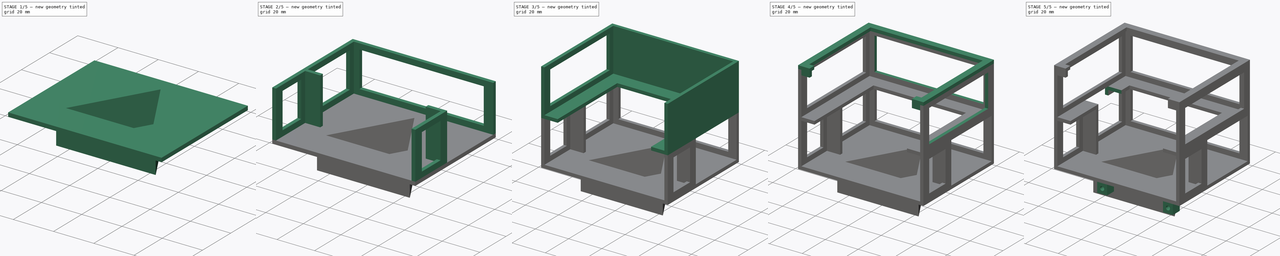
[diagram: build sequence overview — one tinted view per stage of 5, left to right]
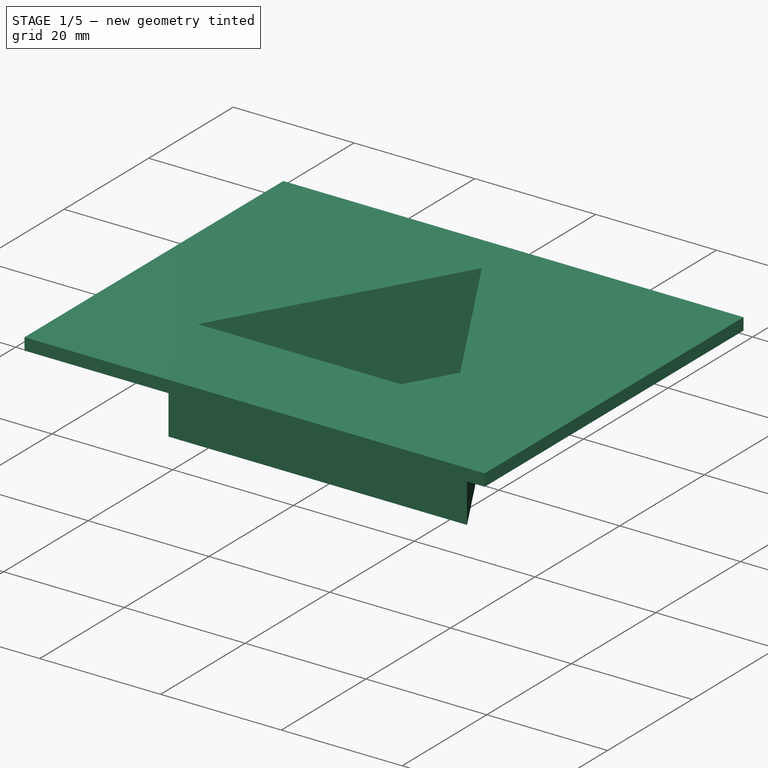
[diagram: stage 1 of 5 — iso view after this stage's code; geometry added in this stage tinted green]
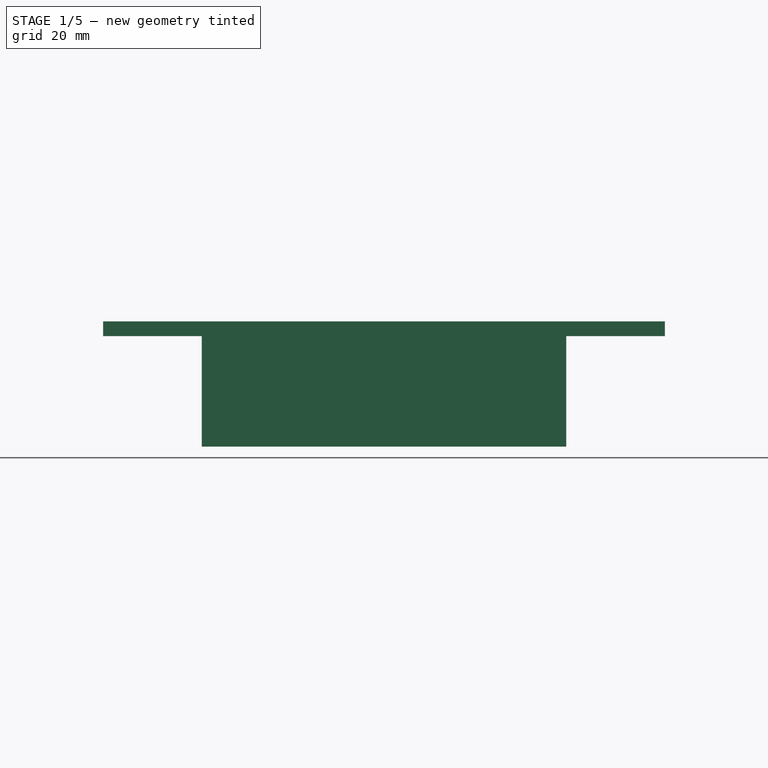
[diagram: stage 1 of 5 — front view after this stage's code; geometry added in this stage tinted green]
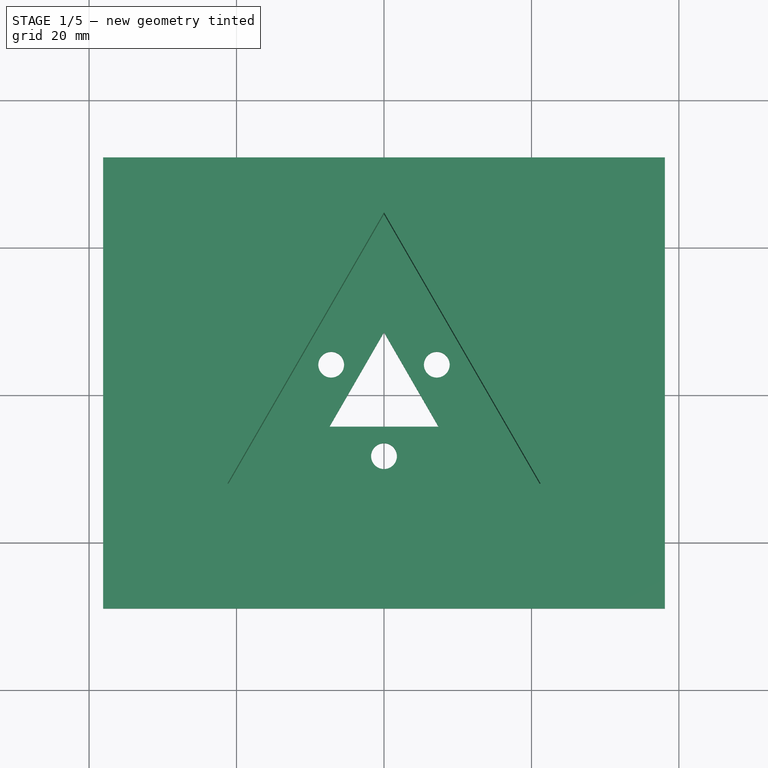
[diagram: stage 1 of 5 — top view after this stage's code; geometry added in this stage tinted green]
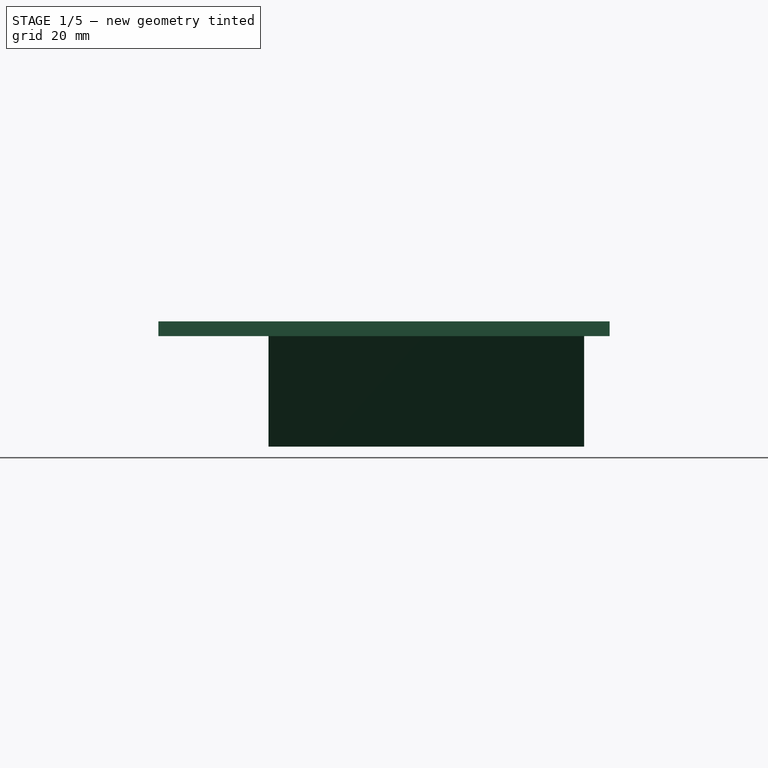
[diagram: stage 1 of 5 — right view after this stage's code; geometry added in this stage tinted green]
FCSTD DOCUMENT  (FreeCAD 0.19R)
Label: core2_3
License: All rights reserved
LicenseURL: http://en.wikipedia.org/wiki/All_rights_reserved
objects: Sketcher::SketchObject×17, PartDesign::Pad×9, PartDesign::Pocket×8, PartDesign::Body×1
note: 52 computed .brp shape members not serialized (recipe doc carries the construction recipe); baked Part::Feature solids carry a one-line shape summary decoded from their .brp

FEATURE [Sketcher::SketchObject] Sketch
  FullyConstrained = true
  MapMode = 5
  Support = -> [XY_Plane]
  sketch-geometry (19):
    g0: LineSegment StartX=0 StartY=24.5374 StartZ=0 EndX=-21.25 EndY=-12.2687 EndZ=0
    g1: LineSegment StartX=-21.25 StartY=-12.2687 StartZ=0 EndX=21.25 EndY=-12.2687 EndZ=0
    g2: LineSegment StartX=21.25 StartY=-12.2687 StartZ=0 EndX=0 EndY=24.5374 EndZ=0
    g3: Circle CenterX=0 CenterY=0 CenterZ=0 NormalX=0 NormalY=0 NormalZ=1 AngleXU=0 Radius=24.5374
    g4: LineSegment StartX=0 StartY=28.5374 StartZ=0 EndX=-24.7141 EndY=-14.2687 EndZ=0
    g5: LineSegment StartX=-24.7141 StartY=-14.2687 StartZ=0 EndX=24.7141 EndY=-14.2687 EndZ=0
    g6: LineSegment StartX=24.7141 StartY=-14.2687 StartZ=0 EndX=0 EndY=28.5374 EndZ=0
    g7: Circle CenterX=0 CenterY=0 CenterZ=0 NormalX=0 NormalY=0 NormalZ=1 AngleXU=0 Radius=28.5374
    g8: LineSegment StartX=0 StartY=8.53739 StartZ=0 EndX=-7.39359 EndY=-4.26869 EndZ=0
    g9: LineSegment StartX=-7.39359 StartY=-4.26869 StartZ=0 EndX=7.39359 EndY=-4.26869 EndZ=0
    g10: LineSegment StartX=7.39359 StartY=-4.26869 StartZ=0 EndX=0 EndY=8.53739 EndZ=0
    g11: Circle CenterX=0 CenterY=0 CenterZ=0 NormalX=0 NormalY=0 NormalZ=1 AngleXU=0 Radius=8.53739
    g12: LineSegment StartX=0 StartY=-8.26869 StartZ=0 EndX=7.1609 EndY=4.13435 EndZ=0
    g13: LineSegment StartX=7.1609 StartY=4.13435 StartZ=0 EndX=-7.1609 EndY=4.13435 EndZ=0
    g14: LineSegment StartX=-7.1609 StartY=4.13435 StartZ=0 EndX=0 EndY=-8.26869 EndZ=0
    g15: Circle CenterX=0 CenterY=0 CenterZ=0 NormalX=0 NormalY=0 NormalZ=1 AngleXU=0 Radius=8.26869
    g16: Circle CenterX=7.1609 CenterY=4.13435 CenterZ=0 NormalX=0 NormalY=0 NormalZ=1 AngleXU=0 Radius=1.75
    g17: Circle CenterX=0 CenterY=-8.26869 CenterZ=0 NormalX=0 NormalY=0 NormalZ=1 AngleXU=0 Radius=1.75
    g18: Circle CenterX=-7.1609 CenterY=4.13435 CenterZ=0 NormalX=0 NormalY=0 NormalZ=1 AngleXU=0 Radius=1.75
  constraints (50):
    c: Coincident(g0,g1)
    c: Coincident(g1,g2)
    c: Coincident(g2,g0)
    c: Equal(g0,g1)
    c: Equal(g0,g2)
    c: PointOnObject(g0,g3)
    c: PointOnObject(g1,g3)
    c: PointOnObject(g2,g3)
    c: Coincident(g3,g-1)
    c: PointOnObject(g2,g-2)
    c: Distance(g1) = 42.5
    c: Coincident(g4,g5)
    c: Coincident(g5,g6)
    c: Coincident(g6,g4)
    c: Equal(g4,g5)
    c: Equal(g4,g6)
    c: PointOnObject(g4,g7)
    c: PointOnObject(g5,g7)
    c: PointOnObject(g6,g7)
    c: Coincident(g7,g-1)
    c: PointOnObject(g6,g-2)
    c: Distance(g0,g5) = 2
    c: Coincident(g8,g9)
    c: Coincident(g9,g10)
    c: Coincident(g10,g8)
    c: Equal(g8,g9)
    c: Equal(g8,g10)
    c: PointOnObject(g8,g11)
    c: PointOnObject(g9,g11)
    c: PointOnObject(g10,g11)
    c: Coincident(g11,g-1)
    c: PointOnObject(g10,g-2)
    c: Distance(g8,g1) = 8
    c: Coincident(g12,g13)
    c: Coincident(g13,g14)
    c: Coincident(g14,g12)
    c: Equal(g12,g13)
    c: Equal(g12,g14)
    c: PointOnObject(g12,g15)
    c: PointOnObject(g13,g15)
    c: PointOnObject(g14,g15)
    c: Coincident(g15,g-1)
    c: PointOnObject(g14,g-2)
    c: Distance(g13,g0) = 4
    c: Coincident(g16,g12)
    c: Coincident(g17,g12)
    c: Coincident(g18,g13)
    c: Diameter(g16) = 3.5
    c: Diameter(g17) = 3.5
    c: Diameter(g18) = 3.5
FEATURE [PartDesign::Pad] Pad
  Direction = (1,1,1)
  Length = 2
  Length2 = 100
  Profile = -> Sketch
  Type = 0
FEATURE [Sketcher::SketchObject] Sketch001
  ExternalGeometry = -> [Pad]
  FullyConstrained = true
  MapMode = 5
  Placement = pos=(0,0,2) rot=(0,0,1;0rad)
  Support = -> [Pad]
  sketch-geometry (8):
    g0: LineSegment StartX=0 StartY=28.5374 StartZ=0 EndX=-24.7141 EndY=-14.2687 EndZ=0
    g1: LineSegment StartX=-24.7141 StartY=-14.2687 StartZ=0 EndX=24.7141 EndY=-14.2687 EndZ=0
    g2: LineSegment StartX=24.7141 StartY=-14.2687 StartZ=0 EndX=-3.6e-15 EndY=28.5374 EndZ=0
    g3: Circle CenterX=0 CenterY=0 CenterZ=0 NormalX=0 NormalY=0 NormalZ=1 AngleXU=0 Radius=28.5374
    g4: LineSegment StartX=0 StartY=24.5374 StartZ=0 EndX=-21.25 EndY=-12.2687 EndZ=0
    g5: LineSegment StartX=-21.25 StartY=-12.2687 StartZ=0 EndX=21.25 EndY=-12.2687 EndZ=0
    g6: LineSegment StartX=21.25 StartY=-12.2687 StartZ=0 EndX=0 EndY=24.5374 EndZ=0
    g7: Circle CenterX=0 CenterY=0 CenterZ=0 NormalX=0 NormalY=0 NormalZ=1 AngleXU=0 Radius=24.5374
  constraints (21):
    c: Coincident(g0,g1)
    c: Coincident(g1,g2)
    c: Coincident(g2,g0)
    c: Equal(g0,g1)
    c: Equal(g0,g2)
    c: PointOnObject(g0,g3)
    c: PointOnObject(g1,g3)
    c: PointOnObject(g2,g3)
    c: Coincident(g3,g-1)
    c: Coincident(g2,g-3)
    c: Coincident(g4,g5)
    c: Coincident(g5,g6)
    c: Coincident(g6,g4)
    c: Equal(g4,g5)
    c: Equal(g4,g6)
    c: PointOnObject(g4,g7)
    c: PointOnObject(g5,g7)
    c: PointOnObject(g6,g7)
    c: Coincident(g7,g-1)
    c: PointOnObject(g6,g-2)
    c: Distance(g4,g1) = 2
FEATURE [PartDesign::Pad] Pad001
  BaseFeature = -> Pad
  Direction = (1,1,1)
  Length = 13
  Length2 = 100
  Profile = -> Sketch001
  Type = 0
FEATURE [Sketcher::SketchObject] Sketch002
  ExternalGeometry = -> [Pad001]
  FullyConstrained = true
  MapMode = 5
  Placement = pos=(0,0,15) rot=(0,0,1;0rad)
  Support = -> [Pad001]
  sketch-geometry (12):
    g0: LineSegment StartX=-36.1 StartY=30 StartZ=0 EndX=36.1 EndY=30 EndZ=0
    g1: LineSegment StartX=36.1 StartY=30 StartZ=0 EndX=36.1 EndY=-27.2 EndZ=0
    g2: LineSegment StartX=36.1 StartY=-27.2 StartZ=0 EndX=-36.1 EndY=-27.2 EndZ=0
    g3: LineSegment StartX=-36.1 StartY=-27.2 StartZ=0 EndX=-36.1 EndY=30 EndZ=0
    g4: LineSegment StartX=-38.1 StartY=32 StartZ=0 EndX=38.1 EndY=32 EndZ=0
    g5: LineSegment StartX=38.1 StartY=32 StartZ=0 EndX=38.1 EndY=-29.2 EndZ=0
    g6: LineSegment StartX=38.1 StartY=-29.2 StartZ=0 EndX=-38.1 EndY=-29.2 EndZ=0
    g7: LineSegment StartX=-38.1 StartY=-29.2 StartZ=0 EndX=-38.1 EndY=32 EndZ=0
    g8: LineSegment StartX=0 StartY=24.5374 StartZ=0 EndX=-21.25 EndY=-12.2687 EndZ=0
    g9: LineSegment StartX=-21.25 StartY=-12.2687 StartZ=0 EndX=21.25 EndY=-12.2687 EndZ=0
    g10: LineSegment StartX=21.25 StartY=-12.2687 StartZ=0 EndX=0 EndY=24.5374 EndZ=0
    g11: Circle CenterX=0 CenterY=0 CenterZ=0 NormalX=0 NormalY=0 NormalZ=1 AngleXU=0 Radius=24.5374
  constraints (34):
    c: Coincident(g0,g1)
    c: Coincident(g1,g2)
    c: Coincident(g2,g3)
    c: Coincident(g3,g0)
    c: Horizontal(g0)
    c: Horizontal(g2)
    c: Vertical(g1)
    c: Vertical(g3)
    c: Distance(g0) = 72.2
    c: Distance(g3) = 57.2
    c: Distance(g-1,g3) = 36.1
    c: Distance(g-1,g0) = 30
    c: Coincident(g4,g5)
    c: Coincident(g5,g6)
    c: Coincident(g6,g7)
    c: Coincident(g7,g4)
    c: Horizontal(g4)
    c: Horizontal(g6)
    c: Vertical(g5)
    c: Vertical(g7)
    c: Distance(g0,g4) = 2
    c: Distance(g0,g7) = 2
    c: Distance(g1,g5) = 2
    c: Distance(g1,g6) = 2
    c: Coincident(g8,g9)
    c: Coincident(g9,g10)
    c: Coincident(g10,g8)
    c: Equal(g8,g9)
    c: Equal(g8,g10)
    c: PointOnObject(g8,g11)
    c: PointOnObject(g9,g11)
    c: PointOnObject(g10,g11)
    c: Coincident(g11,g-1)
    c: Coincident(g10,g-3)
FEATURE [PartDesign::Pad] Pad002
  BaseFeature = -> Pad001
  Direction = (1,1,1)
  Length = 2
  Length2 = 100
  Profile = -> Sketch002
  Type = 0
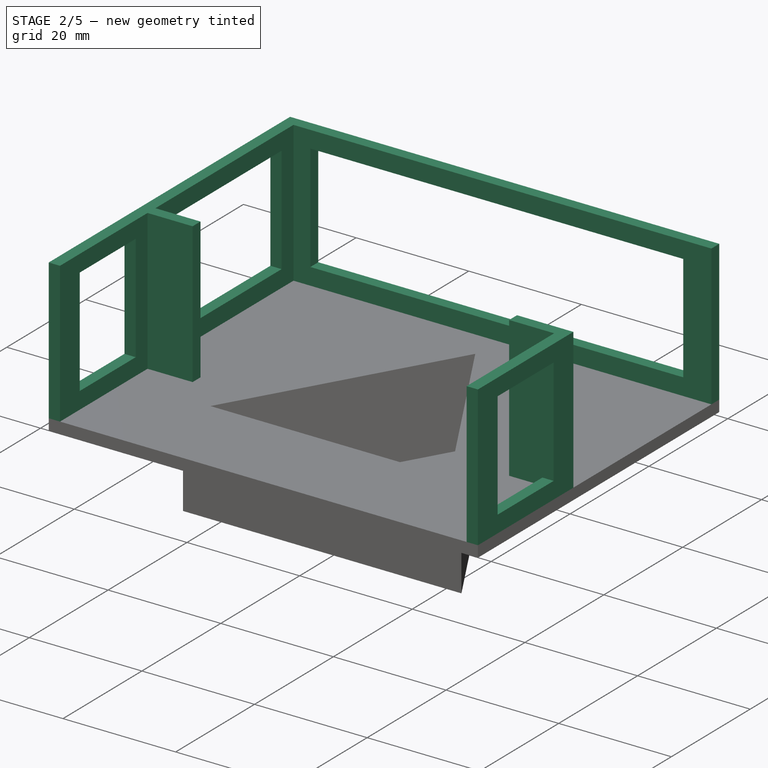
[diagram: stage 2 of 5 — iso view after this stage's code; geometry added in this stage tinted green]
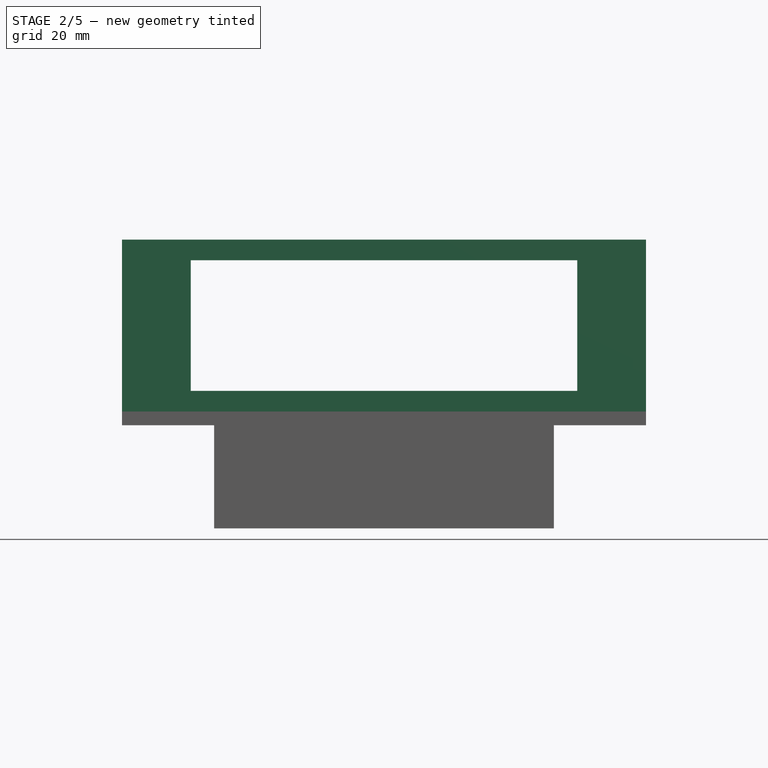
[diagram: stage 2 of 5 — front view after this stage's code; geometry added in this stage tinted green]
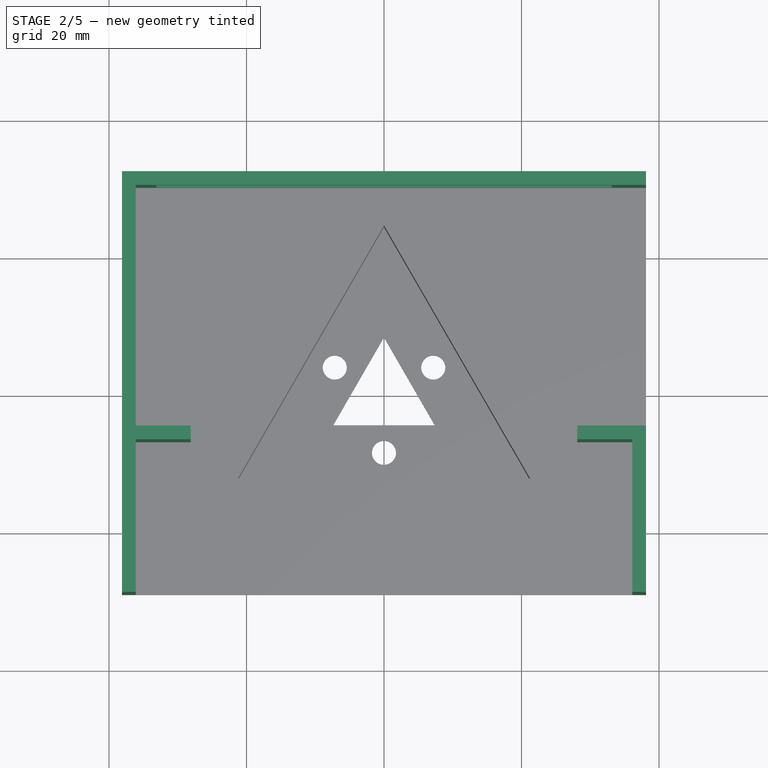
[diagram: stage 2 of 5 — top view after this stage's code; geometry added in this stage tinted green]
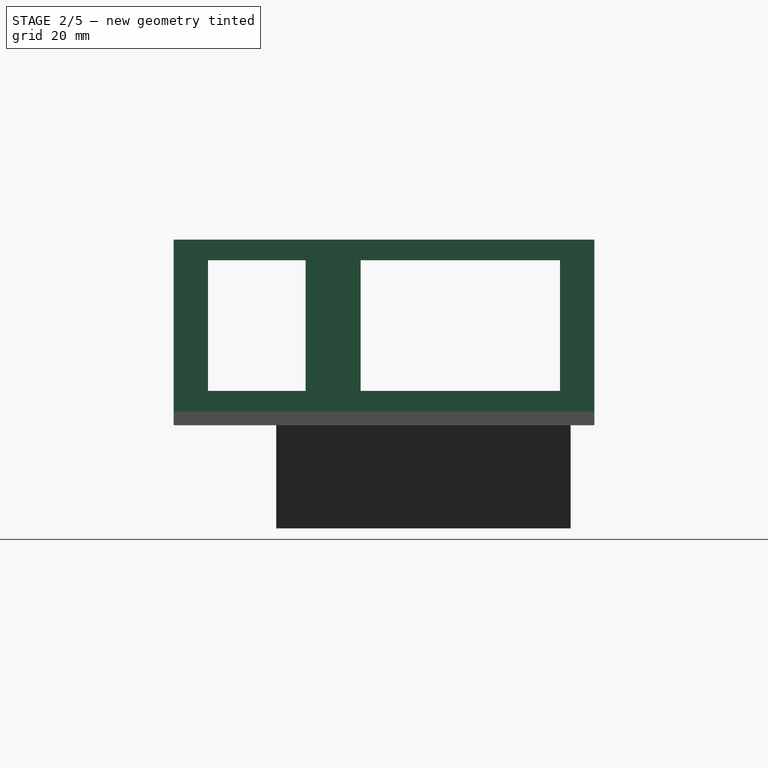
[diagram: stage 2 of 5 — right view after this stage's code; geometry added in this stage tinted green]
FEATURE [Sketcher::SketchObject] Sketch003
  ExternalGeometry = -> [Pad002]
  FullyConstrained = true
  MapMode = 5
  Placement = pos=(0,0,17) rot=(0,0,1;0rad)
  Support = -> [Pad002]
  sketch-geometry (16):
    g0: LineSegment StartX=-38.1 StartY=-29.2 StartZ=0 EndX=-38.1 EndY=32 EndZ=0
    g1: LineSegment StartX=-38.1 StartY=32 StartZ=0 EndX=38.1 EndY=32 EndZ=0
    g2: LineSegment StartX=38.1 StartY=32 StartZ=0 EndX=38.1 EndY=-29.2 EndZ=0
    g3: LineSegment StartX=38.1 StartY=-29.2 StartZ=0 EndX=36.1 EndY=-29.2 EndZ=0
    g4: LineSegment StartX=36.1 StartY=-29.2 StartZ=0 EndX=36.1 EndY=-7 EndZ=0
    g5: LineSegment StartX=36.1 StartY=-7 StartZ=0 EndX=28.1 EndY=-7 EndZ=0
    g6: LineSegment StartX=28.1 StartY=-7 StartZ=0 EndX=28.1 EndY=-5 EndZ=0
    g7: LineSegment StartX=28.1 StartY=-5 StartZ=0 EndX=36.1 EndY=-5 EndZ=0
    g8: LineSegment StartX=36.1 StartY=-5 StartZ=0 EndX=36.1 EndY=30 EndZ=0
    g9: LineSegment StartX=36.1 StartY=30 StartZ=0 EndX=-36.1 EndY=30 EndZ=0
    g10: LineSegment StartX=-36.1 StartY=30 StartZ=0 EndX=-36.1 EndY=-5 EndZ=0
    g11: LineSegment StartX=-36.1 StartY=-5 StartZ=0 EndX=-28.1 EndY=-5 EndZ=0
    g12: LineSegment StartX=-28.1 StartY=-5 StartZ=0 EndX=-28.1 EndY=-7 EndZ=0
    g13: LineSegment StartX=-28.1 StartY=-7 StartZ=0 EndX=-36.1 EndY=-7 EndZ=0
    g14: LineSegment StartX=-36.1 StartY=-7 StartZ=0 EndX=-36.1 EndY=-29.2 EndZ=0
    g15: LineSegment StartX=-36.1 StartY=-29.2 StartZ=0 EndX=-38.1 EndY=-29.2 EndZ=0
  constraints (44):
    c: Coincident(g-6,g0)
    c: Coincident(g0,g-4)
    c: Coincident(g0,g1)
    c: Coincident(g1,g-5)
    c: Coincident(g1,g2)
    c: Coincident(g2,g-6)
    c: Coincident(g2,g3)
    c: PointOnObject(g3,g-6)
    c: Coincident(g3,g4)
    c: Vertical(g4)
    c: Coincident(g4,g5)
    c: Horizontal(g5)
    c: Coincident(g5,g6)
    c: Coincident(g6,g7)
    c: Horizontal(g7)
    c: Coincident(g7,g8)
    c: Vertical(g8)
    c: Coincident(g8,g9)
    c: Horizontal(g9)
    c: Coincident(g9,g10)
    c: Vertical(g10)
    c: Coincident(g10,g11)
    c: Horizontal(g11)
    c: Coincident(g11,g12)
    c: Vertical(g12)
    c: Coincident(g12,g13)
    c: Horizontal(g13)
    c: Coincident(g13,g14)
    c: PointOnObject(g14,g-6)
    c: Vertical(g14)
    c: Coincident(g14,g15)
    c: Coincident(g15,g0)
    c: Vertical(g6)
    c: Distance(g15) = 2
    c: Distance(g9,g0) = 2
    c: Distance(g9,g1) = 2
    c: Distance(g10) = 35
    c: Distance(g8,g2) = 2
    c: Distance(g8) = 35
    c: Distance(g6) = 2
    c: Distance(g12) = 2
    c: Distance(g3) = 2
    c: Distance(g13) = 8
    c: Distance(g5) = 8
FEATURE [PartDesign::Pad] Pad003
  BaseFeature = -> Pad002
  Direction = (1,1,1)
  Length = 25
  Length2 = 100
  Profile = -> Sketch003
  Type = 0
FEATURE [Sketcher::SketchObject] Sketch004
  ExternalGeometry = -> [Pad003]
  FullyConstrained = true
  MapMode = 5
  Placement = pos=(-36.1,0,0) rot=(0.57735,0.57735,0.57735;2.0944rad)
  Support = -> [Pad003]
  sketch-geometry (8):
    g0: LineSegment StartX=-24.2 StartY=39 StartZ=0 EndX=-10 EndY=39 EndZ=0
    g1: LineSegment StartX=-10 StartY=39 StartZ=0 EndX=-10 EndY=20 EndZ=0
    g2: LineSegment StartX=-10 StartY=20 StartZ=0 EndX=-24.2 EndY=20 EndZ=0
    g3: LineSegment StartX=-24.2 StartY=20 StartZ=0 EndX=-24.2 EndY=39 EndZ=0
    g4: LineSegment StartX=-2 StartY=39 StartZ=0 EndX=27 EndY=39 EndZ=0
    g5: LineSegment StartX=27 StartY=39 StartZ=0 EndX=27 EndY=20 EndZ=0
    g6: LineSegment StartX=27 StartY=20 StartZ=0 EndX=-2 EndY=20 EndZ=0
    g7: LineSegment StartX=-2 StartY=20 StartZ=0 EndX=-2 EndY=39 EndZ=0
  constraints (24):
    c: Coincident(g0,g1)
    c: Coincident(g1,g2)
    c: Coincident(g2,g3)
    c: Coincident(g3,g0)
    c: Horizontal(g0)
    c: Horizontal(g2)
    c: Vertical(g1)
    c: Vertical(g3)
    c: Coincident(g4,g5)
    c: Coincident(g5,g6)
    c: Coincident(g6,g7)
    c: Coincident(g7,g4)
    c: Horizontal(g4)
    c: Horizontal(g6)
    c: Vertical(g5)
    c: Vertical(g7)
    c: Distance(g0,g-3) = 3
    c: Distance(g0,g-4) = 5
    c: Distance(g1,g-5) = 3
    c: Distance(g1,g-7) = 3
    c: Distance(g4,g-6) = 3
    c: Distance(g4,g-8) = 3
    c: Distance(g5,g-9) = 3
    c: Distance(g5,g-10) = 3
FEATURE [PartDesign::Pocket] Pocket
  BaseFeature = -> Pad003
  Length = 2
  Length2 = 100
  Profile = -> Sketch004
  Type = 0
FEATURE [Sketcher::SketchObject] Sketch005
  ExternalGeometry = -> [Pocket]
  FullyConstrained = true
  MapMode = 5
  Placement = pos=(0,30,0) rot=(1,0,0;1.5708rad)
  Support = -> [Pocket]
  sketch-geometry (4):
    g0: LineSegment StartX=-33.1 StartY=39 StartZ=0 EndX=33.1 EndY=39 EndZ=0
    g1: LineSegment StartX=33.1 StartY=39 StartZ=0 EndX=33.1 EndY=20 EndZ=0
    g2: LineSegment StartX=33.1 StartY=20 StartZ=0 EndX=-33.1 EndY=20 EndZ=0
    g3: LineSegment StartX=-33.1 StartY=20 StartZ=0 EndX=-33.1 EndY=39 EndZ=0
  constraints (12):
    c: Coincident(g0,g1)
    c: Coincident(g1,g2)
    c: Coincident(g2,g3)
    c: Coincident(g3,g0)
    c: Horizontal(g0)
    c: Horizontal(g2)
    c: Vertical(g1)
    c: Vertical(g3)
    c: Distance(g0,g-5) = 3
    c: Distance(g0,g-3) = 3
    c: Distance(g1,g-4) = 3
    c: Distance(g1,g-6) = 3
FEATURE [PartDesign::Pocket] Pocket001
  BaseFeature = -> Pocket
  Length = 2
  Length2 = 100
  Profile = -> Sketch005
  Type = 0
FEATURE [Sketcher::SketchObject] Sketch006
  ExternalGeometry = -> [Pocket001]
  FullyConstrained = true
  MapMode = 5
  Placement = pos=(36.1,0,0) rot=(0.57735,-0.57735,-0.57735;2.0944rad)
  Support = -> [Pocket001]
  sketch-geometry (8):
    g0: LineSegment StartX=-30 StartY=42 StartZ=0 EndX=5 EndY=42 EndZ=0
    g1: LineSegment StartX=5 StartY=42 StartZ=0 EndX=5 EndY=17 EndZ=0
    g2: LineSegment StartX=5 StartY=17 StartZ=0 EndX=-30 EndY=17 EndZ=0
    g3: LineSegment StartX=-30 StartY=17 StartZ=0 EndX=-30 EndY=42 EndZ=0
    g4: LineSegment StartX=10 StartY=39 StartZ=0 EndX=24.2 EndY=39 EndZ=0
    g5: LineSegment StartX=24.2 StartY=39 StartZ=0 EndX=24.2 EndY=20 EndZ=0
    g6: LineSegment StartX=24.2 StartY=20 StartZ=0 EndX=10 EndY=20 EndZ=0
    g7: LineSegment StartX=10 StartY=20 StartZ=0 EndX=10 EndY=39 EndZ=0
  constraints (22):
    c: Coincident(g0,g1)
    c: Coincident(g1,g2)
    c: Coincident(g2,g3)
    c: Coincident(g3,g0)
    c: Horizontal(g0)
    c: Horizontal(g2)
    c: Vertical(g1)
    c: Vertical(g3)
    c: Coincident(g0,g-3)
    c: Coincident(g1,g-4)
    c: Coincident(g4,g5)
    c: Coincident(g5,g6)
    c: Coincident(g6,g7)
    c: Coincident(g7,g4)
    c: Horizontal(g4)
    c: Horizontal(g6)
    c: Vertical(g5)
    c: Vertical(g7)
    c: Distance(g4,g-6) = 3
    c: Distance(g4,g-5) = 3
    c: Distance(g5,g-7) = 5
    c: Distance(g5,g-8) = 3
FEATURE [PartDesign::Pocket] Pocket002
  BaseFeature = -> Pocket001
  Length = 2
  Length2 = 100
  Profile = -> Sketch006
  Type = 0
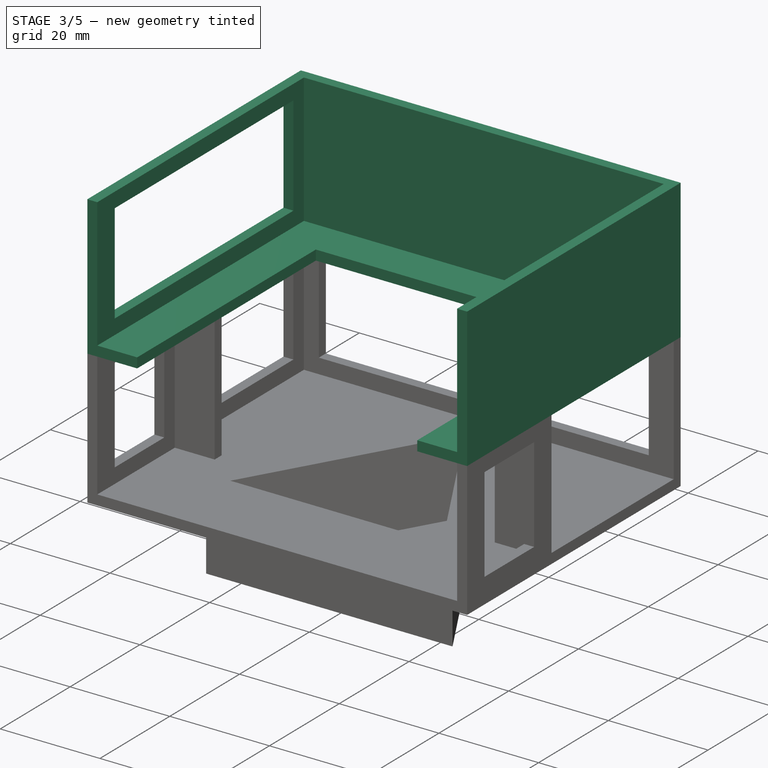
[diagram: stage 3 of 5 — iso view after this stage's code; geometry added in this stage tinted green]
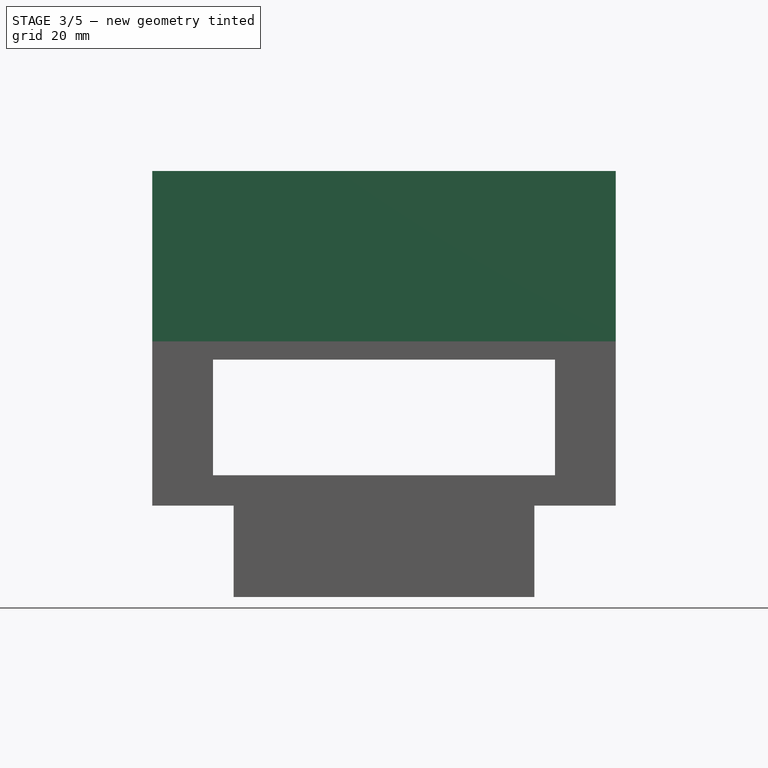
[diagram: stage 3 of 5 — front view after this stage's code; geometry added in this stage tinted green]
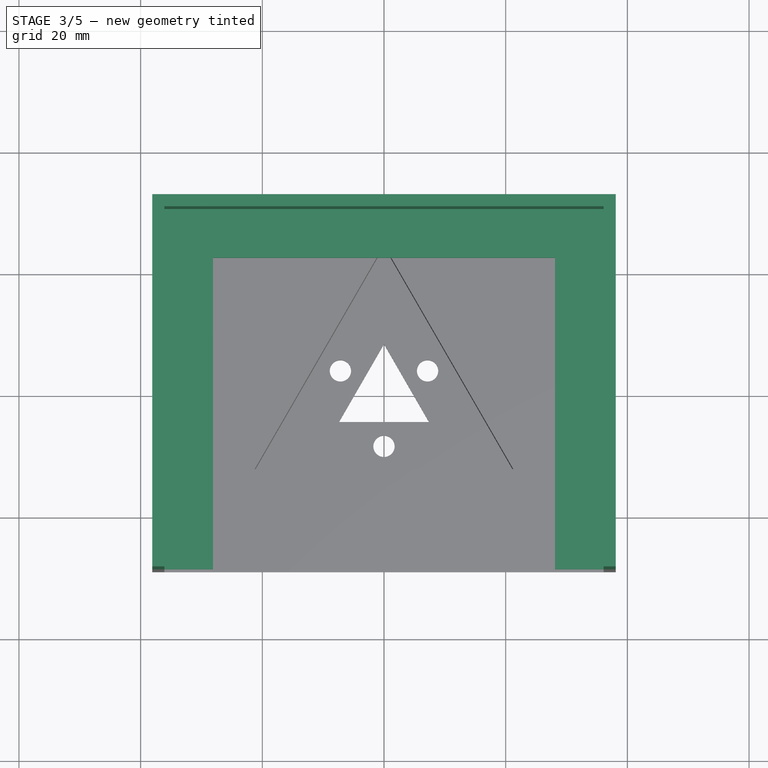
[diagram: stage 3 of 5 — top view after this stage's code; geometry added in this stage tinted green]
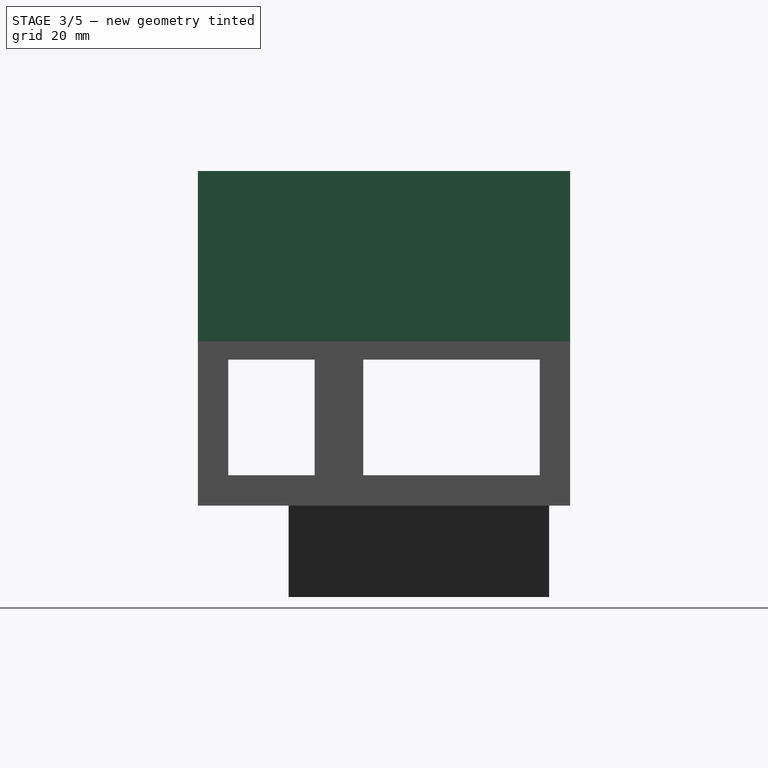
[diagram: stage 3 of 5 — right view after this stage's code; geometry added in this stage tinted green]
FEATURE [Sketcher::SketchObject] Sketch007
  ExternalGeometry = -> [Pocket002]
  FullyConstrained = true
  MapMode = 5
  Placement = pos=(0,0,42) rot=(0,0,1;0rad)
  Support = -> [Pocket002]
  sketch-geometry (8):
    g0: LineSegment StartX=-38.1 StartY=-29.2 StartZ=0 EndX=-38.1 EndY=32 EndZ=0
    g1: LineSegment StartX=-38.1 StartY=32 StartZ=0 EndX=38.1 EndY=32 EndZ=0
    g2: LineSegment StartX=38.1 StartY=32 StartZ=0 EndX=38.1 EndY=-29.2 EndZ=0
    g3: LineSegment StartX=38.1 StartY=-29.2 StartZ=0 EndX=28.1 EndY=-29.2 EndZ=0
    g4: LineSegment StartX=28.1 StartY=-29.2 StartZ=0 EndX=28.1 EndY=22 EndZ=0
    g5: LineSegment StartX=28.1 StartY=22 StartZ=0 EndX=-28.1 EndY=22 EndZ=0
    g6: LineSegment StartX=-28.1 StartY=22 StartZ=0 EndX=-28.1 EndY=-29.2 EndZ=0
    g7: LineSegment StartX=-28.1 StartY=-29.2 StartZ=0 EndX=-38.1 EndY=-29.2 EndZ=0
  constraints (20):
    c: Coincident(g-3,g0)
    c: Coincident(g0,g-4)
    c: Coincident(g0,g1)
    c: Coincident(g1,g-4)
    c: Coincident(g1,g2)
    c: Coincident(g2,g-6)
    c: Coincident(g2,g3)
    c: PointOnObject(g3,g-7)
    c: Coincident(g3,g4)
    c: Vertical(g4)
    c: Coincident(g4,g5)
    c: Horizontal(g5)
    c: Coincident(g5,g6)
    c: PointOnObject(g6,g-7)
    c: Vertical(g6)
    c: Coincident(g6,g7)
    c: Coincident(g7,g0)
    c: Distance(g7) = 10
    c: Distance(g3) = 10
    c: Distance(g5,g1) = 10
FEATURE [PartDesign::Pad] Pad004
  BaseFeature = -> Pocket002
  Direction = (1,1,1)
  Length = 2
  Length2 = 100
  Profile = -> Sketch007
  Type = 0
FEATURE [Sketcher::SketchObject] Sketch008
  ExternalGeometry = -> [Pad004]
  FullyConstrained = true
  MapMode = 5
  Placement = pos=(0,0,44) rot=(0,0,1;0rad)
  Support = -> [Pad004]
  sketch-geometry (8):
    g0: LineSegment StartX=-38.1 StartY=-29.2 StartZ=0 EndX=-38.1 EndY=32 EndZ=0
    g1: LineSegment StartX=-38.1 StartY=32 StartZ=0 EndX=38.1 EndY=32 EndZ=0
    g2: LineSegment StartX=38.1 StartY=32 StartZ=0 EndX=38.1 EndY=-29.2 EndZ=0
    g3: LineSegment StartX=38.1 StartY=-29.2 StartZ=0 EndX=36.1 EndY=-29.2 EndZ=0
    g4: LineSegment StartX=36.1 StartY=-29.2 StartZ=0 EndX=36.1 EndY=30 EndZ=0
    g5: LineSegment StartX=36.1 StartY=30 StartZ=0 EndX=-36.1 EndY=30 EndZ=0
    g6: LineSegment StartX=-36.1 StartY=30 StartZ=0 EndX=-36.1 EndY=-29.2 EndZ=0
    g7: LineSegment StartX=-36.1 StartY=-29.2 StartZ=0 EndX=-38.1 EndY=-29.2 EndZ=0
  constraints (20):
    c: Coincident(g-7,g0)
    c: Coincident(g0,g-4)
    c: Coincident(g0,g1)
    c: Coincident(g1,g-5)
    c: Coincident(g1,g2)
    c: Coincident(g2,g-6)
    c: Coincident(g2,g3)
    c: PointOnObject(g3,g-6)
    c: Coincident(g3,g4)
    c: Vertical(g4)
    c: Coincident(g4,g5)
    c: Horizontal(g5)
    c: Coincident(g5,g6)
    c: PointOnObject(g6,g-7)
    c: Vertical(g6)
    c: Coincident(g6,g7)
    c: Coincident(g7,g0)
    c: Distance(g7) = 2
    c: Distance(g3) = 2
    c: Distance(g5,g1) = 2
FEATURE [PartDesign::Pad] Pad005
  BaseFeature = -> Pad004
  Direction = (1,1,1)
  Length = 26
  Length2 = 100
  Profile = -> Sketch008
  Type = 0
FEATURE [Sketcher::SketchObject] Sketch009
  ExternalGeometry = -> [Pad005]
  FullyConstrained = true
  MapMode = 5
  Placement = pos=(-36.1,0,0) rot=(0.57735,0.57735,0.57735;2.0944rad)
  Support = -> [Pad005]
  sketch-geometry (4):
    g0: LineSegment StartX=-24.2 StartY=67 StartZ=0 EndX=27 EndY=67 EndZ=0
    g1: LineSegment StartX=27 StartY=67 StartZ=0 EndX=27 EndY=47 EndZ=0
    g2: LineSegment StartX=27 StartY=47 StartZ=0 EndX=-24.2 EndY=47 EndZ=0
    g3: LineSegment StartX=-24.2 StartY=47 StartZ=0 EndX=-24.2 EndY=67 EndZ=0
  constraints (12):
    c: Coincident(g0,g1)
    c: Coincident(g1,g2)
    c: Coincident(g2,g3)
    c: Coincident(g3,g0)
    c: Horizontal(g0)
    c: Horizontal(g2)
    c: Vertical(g1)
    c: Vertical(g3)
    c: Distance(g0,g-4) = 5
    c: Distance(g0,g-3) = 3
    c: Distance(g0,g-5) = 3
    c: Distance(g1,g-6) = 3
FEATURE [PartDesign::Pocket] Pocket003
  BaseFeature = -> Pad005
  Length = 2
  Length2 = 100
  Profile = -> Sketch009
  Type = 0
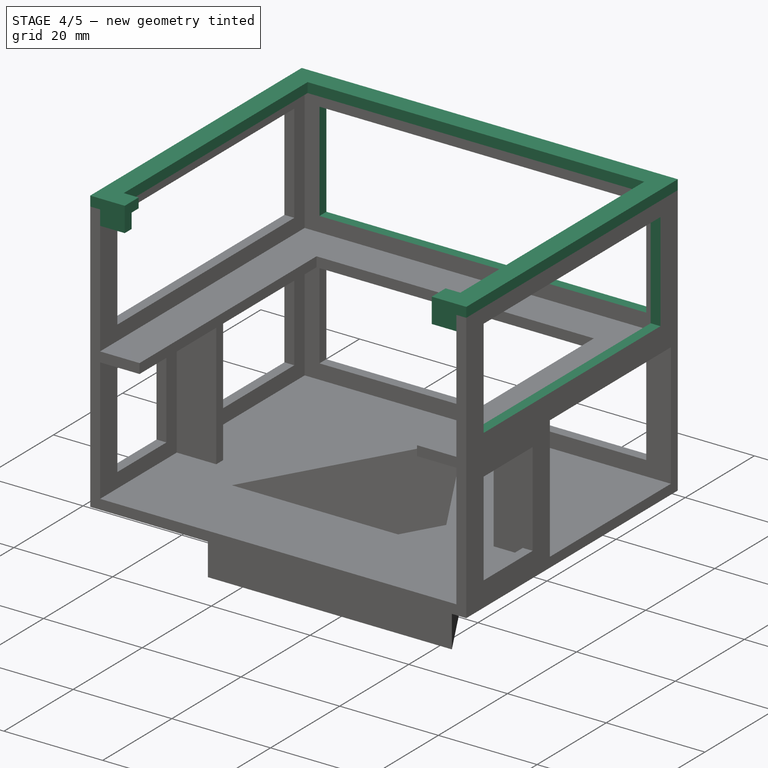
[diagram: stage 4 of 5 — iso view after this stage's code; geometry added in this stage tinted green]
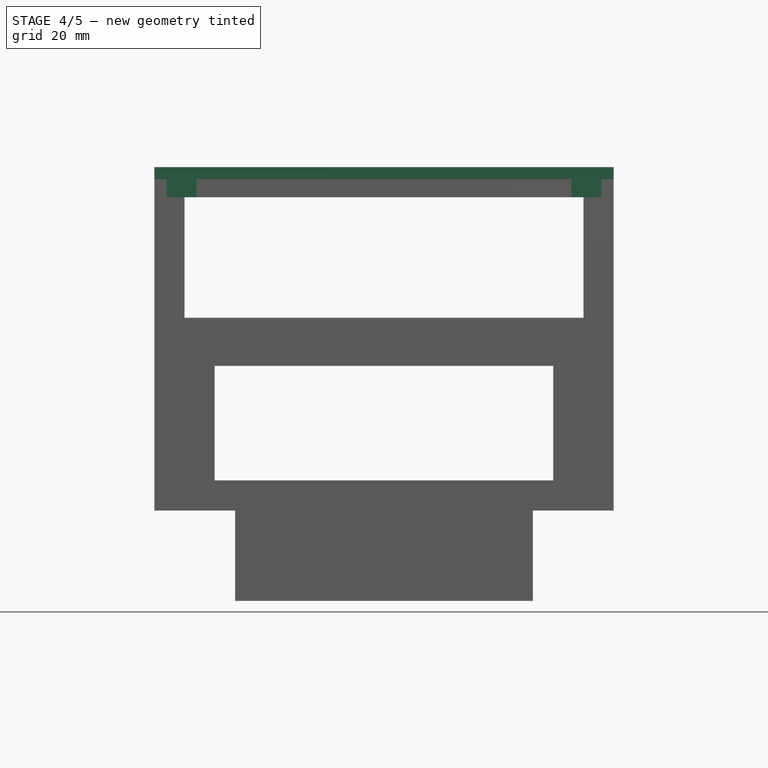
[diagram: stage 4 of 5 — front view after this stage's code; geometry added in this stage tinted green]
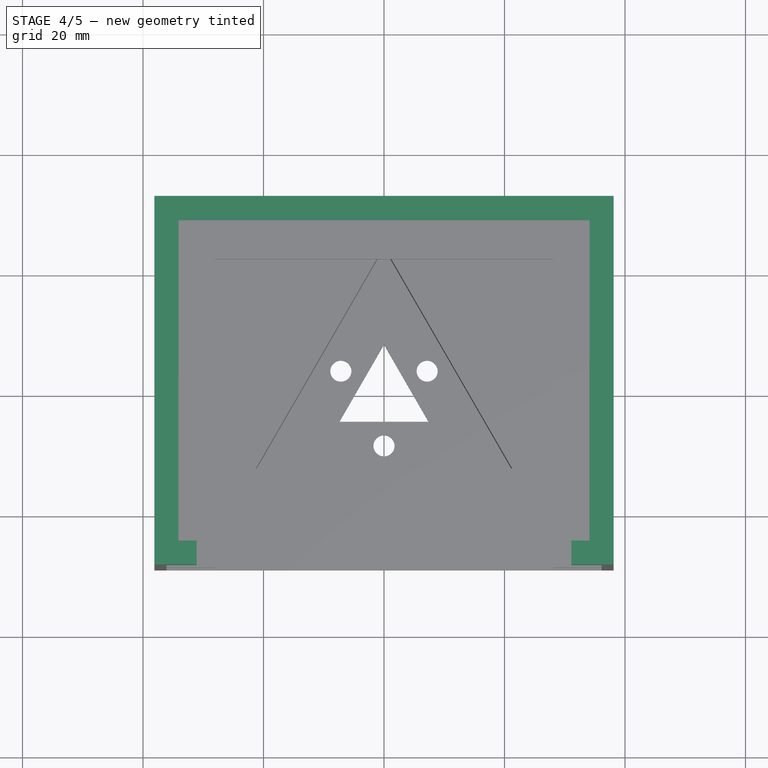
[diagram: stage 4 of 5 — top view after this stage's code; geometry added in this stage tinted green]
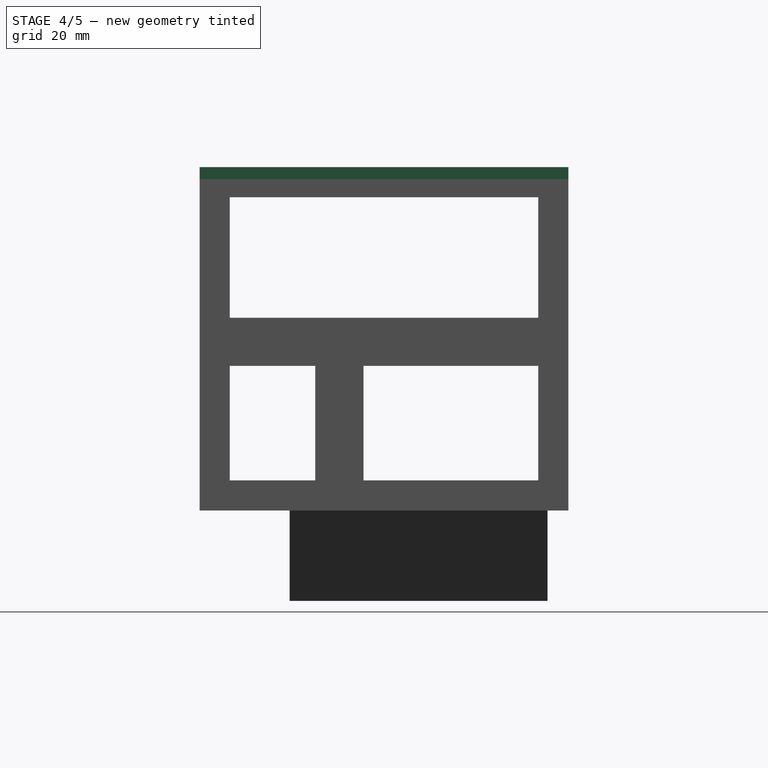
[diagram: stage 4 of 5 — right view after this stage's code; geometry added in this stage tinted green]
FEATURE [Sketcher::SketchObject] Sketch010
  ExternalGeometry = -> [Pocket003]
  FullyConstrained = true
  MapMode = 5
  Placement = pos=(0,30,0) rot=(1,0,0;1.5708rad)
  Support = -> [Pocket003]
  sketch-geometry (4):
    g0: LineSegment StartX=-33.1 StartY=67 StartZ=0 EndX=33.1 EndY=67 EndZ=0
    g1: LineSegment StartX=33.1 StartY=67 StartZ=0 EndX=33.1 EndY=47 EndZ=0
    g2: LineSegment StartX=33.1 StartY=47 StartZ=0 EndX=-33.1 EndY=47 EndZ=0
    g3: LineSegment StartX=-33.1 StartY=47 StartZ=0 EndX=-33.1 EndY=67 EndZ=0
  constraints (12):
    c: Coincident(g0,g1)
    c: Coincident(g1,g2)
    c: Coincident(g2,g3)
    c: Coincident(g3,g0)
    c: Horizontal(g0)
    c: Horizontal(g2)
    c: Vertical(g1)
    c: Vertical(g3)
    c: Distance(g0,g-3) = 3
    c: Distance(g0,g-4) = 3
    c: Distance(g1,g-5) = 3
    c: Distance(g1,g-6) = 3
FEATURE [PartDesign::Pocket] Pocket004
  BaseFeature = -> Pocket003
  Length = 2
  Length2 = 100
  Profile = -> Sketch010
  Type = 0
FEATURE [Sketcher::SketchObject] Sketch011
  ExternalGeometry = -> [Pocket004]
  FullyConstrained = true
  MapMode = 5
  Placement = pos=(36.1,0,0) rot=(0.57735,-0.57735,-0.57735;2.0944rad)
  Support = -> [Pocket004]
  sketch-geometry (4):
    g0: LineSegment StartX=-27 StartY=67 StartZ=0 EndX=24.2 EndY=67 EndZ=0
    g1: LineSegment StartX=24.2 StartY=67 StartZ=0 EndX=24.2 EndY=47 EndZ=0
    g2: LineSegment StartX=24.2 StartY=47 StartZ=0 EndX=-27 EndY=47 EndZ=0
    g3: LineSegment StartX=-27 StartY=47 StartZ=0 EndX=-27 EndY=67 EndZ=0
  constraints (12):
    c: Coincident(g0,g1)
    c: Coincident(g1,g2)
    c: Coincident(g2,g3)
    c: Coincident(g3,g0)
    c: Horizontal(g0)
    c: Horizontal(g2)
    c: Vertical(g1)
    c: Vertical(g3)
    c: Distance(g0,g-3) = 3
    c: Distance(g0,g-4) = 3
    c: Distance(g0,g-6) = 5
    c: Distance(g1,g-5) = 3
FEATURE [PartDesign::Pocket] Pocket005
  BaseFeature = -> Pocket004
  Length = 2
  Length2 = 100
  Profile = -> Sketch011
  Type = 0
FEATURE [Sketcher::SketchObject] Sketch012
  ExternalGeometry = -> [Pocket005]
  FullyConstrained = true
  MapMode = 5
  Placement = pos=(0,0,70) rot=(0,0,1;0rad)
  Support = -> [Pocket005]
  sketch-geometry (12):
    g0: LineSegment StartX=-38.1 StartY=-29.2 StartZ=0 EndX=-38.1 EndY=32 EndZ=0
    g1: LineSegment StartX=-38.1 StartY=32 StartZ=0 EndX=38.1 EndY=32 EndZ=0
    g2: LineSegment StartX=38.1 StartY=32 StartZ=0 EndX=38.1 EndY=-29.2 EndZ=0
    g3: LineSegment StartX=38.1 StartY=-29.2 StartZ=0 EndX=31.1 EndY=-29.2 EndZ=0
    g4: LineSegment StartX=31.1 StartY=-29.2 StartZ=0 EndX=31.1 EndY=-25.2 EndZ=0
    g5: LineSegment StartX=31.1 StartY=-25.2 StartZ=0 EndX=34.1 EndY=-25.2 EndZ=0
    g6: LineSegment StartX=34.1 StartY=-25.2 StartZ=0 EndX=34.1 EndY=28 EndZ=0
    g7: LineSegment StartX=34.1 StartY=28 StartZ=0 EndX=-34.1 EndY=28 EndZ=0
    g8: LineSegment StartX=-34.1 StartY=28 StartZ=0 EndX=-34.1 EndY=-25.2 EndZ=0
    g9: LineSegment StartX=-34.1 StartY=-25.2 StartZ=0 EndX=-31.1 EndY=-25.2 EndZ=0
    g10: LineSegment StartX=-31.1 StartY=-25.2 StartZ=0 EndX=-31.1 EndY=-29.2 EndZ=0
    g11: LineSegment StartX=-31.1 StartY=-29.2 StartZ=0 EndX=-38.1 EndY=-29.2 EndZ=0
  constraints (32):
    c: Coincident(g-3,g0)
    c: Coincident(g0,g-4)
    c: Coincident(g0,g1)
    c: Coincident(g1,g-5)
    c: Coincident(g1,g2)
    c: Coincident(g2,g-5)
    c: Coincident(g2,g3)
    c: PointOnObject(g3,g-6)
    c: Coincident(g3,g4)
    c: Vertical(g4)
    c: Coincident(g4,g5)
    c: Horizontal(g5)
    c: Coincident(g5,g6)
    c: Vertical(g6)
    c: Coincident(g6,g7)
    c: Horizontal(g7)
    c: Coincident(g7,g8)
    c: Vertical(g8)
    c: Coincident(g8,g9)
    c: Horizontal(g9)
    c: Coincident(g9,g10)
    c: PointOnObject(g10,g-7)
    c: Vertical(g10)
    c: Coincident(g10,g11)
    c: Coincident(g11,g0)
    c: Distance(g11) = 7
    c: Distance(g3) = 7
    c: Distance(g10) = 4
    c: Distance(g4) = 4
    c: Distance(g8,g0) = 4
    c: Distance(g5,g2) = 4
    c: Distance(g7,g1) = 4
FEATURE [PartDesign::Pad] Pad006
  BaseFeature = -> Pocket005
  Direction = (1,1,1)
  Length = 2
  Length2 = 100
  Profile = -> Sketch012
  Type = 0
FEATURE [Sketcher::SketchObject] Sketch013
  ExternalGeometry = -> [Pad006]
  FullyConstrained = true
  MapMode = 5
  Placement = pos=(1.49e-14,-29.2,0) rot=(1,0,0;1.5708rad)
  Support = -> [Pad006]
  sketch-geometry (8):
    g0: LineSegment StartX=-31.1 StartY=70 StartZ=0 EndX=-36.1 EndY=70 EndZ=0
    g1: LineSegment StartX=-36.1 StartY=70 StartZ=0 EndX=-36.1 EndY=67 EndZ=0
    g2: LineSegment StartX=-36.1 StartY=67 StartZ=0 EndX=-31.1 EndY=67 EndZ=0
    g3: LineSegment StartX=-31.1 StartY=67 StartZ=0 EndX=-31.1 EndY=70 EndZ=0
    g4: LineSegment StartX=31.1 StartY=70 StartZ=0 EndX=36.1 EndY=70 EndZ=0
    g5: LineSegment StartX=36.1 StartY=70 StartZ=0 EndX=36.1 EndY=67 EndZ=0
    g6: LineSegment StartX=36.1 StartY=67 StartZ=0 EndX=31.1 EndY=67 EndZ=0
    g7: LineSegment StartX=31.1 StartY=67 StartZ=0 EndX=31.1 EndY=70 EndZ=0
  constraints (22):
    c: Coincident(g0,g1)
    c: Coincident(g1,g2)
    c: Coincident(g2,g3)
    c: Coincident(g3,g0)
    c: Horizontal(g0)
    c: Horizontal(g2)
    c: Vertical(g1)
    c: Vertical(g3)
    c: Coincident(g0,g-3)
    c: PointOnObject(g1,g-4)
    c: Coincident(g4,g5)
    c: Coincident(g5,g6)
    c: Coincident(g6,g7)
    c: Coincident(g7,g4)
    c: Horizontal(g4)
    c: Horizontal(g6)
    c: Vertical(g5)
    c: Vertical(g7)
    c: Coincident(g4,g-5)
    c: PointOnObject(g5,g-6)
    c: Distance(g3) = 3
    c: Distance(g7) = 3
FEATURE [PartDesign::Pad] Pad007
  BaseFeature = -> Pad006
  Direction = (1,1,1)
  Length = 2
  Length2 = 100
  Profile = -> Sketch013
  Reversed = true
  Type = 0
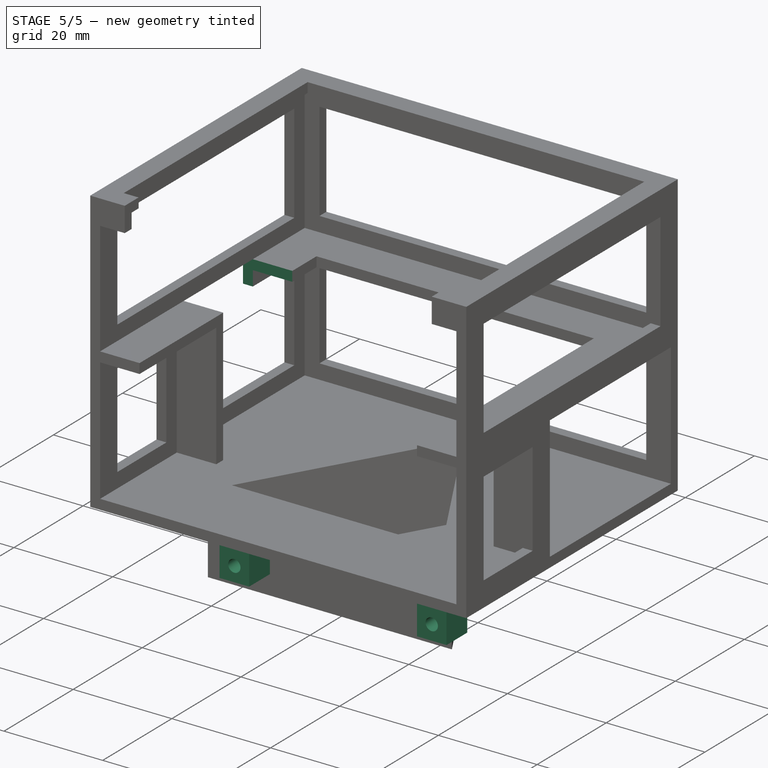
[diagram: stage 5 of 5 — iso view after this stage's code; geometry added in this stage tinted green]
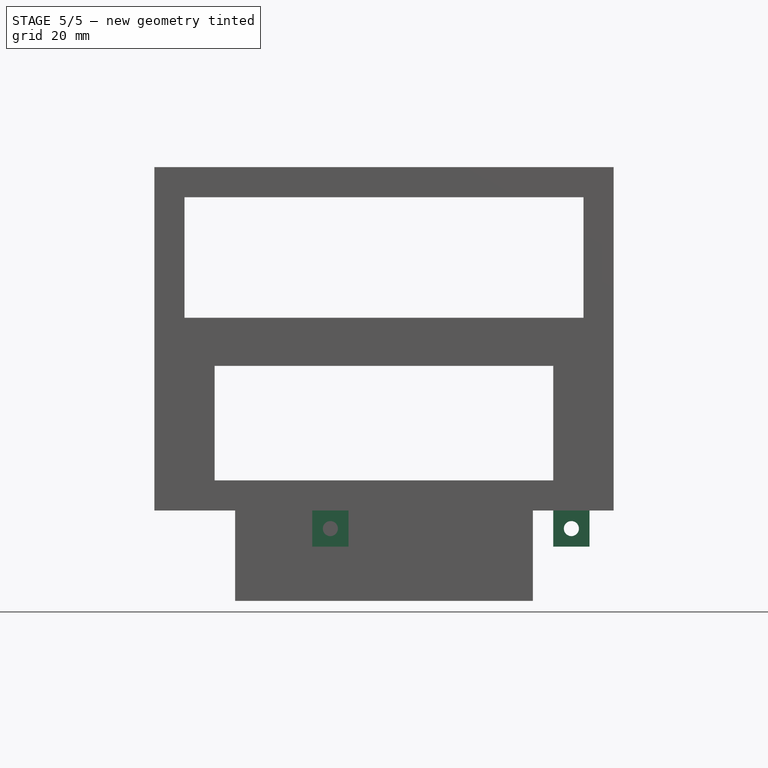
[diagram: stage 5 of 5 — front view after this stage's code; geometry added in this stage tinted green]
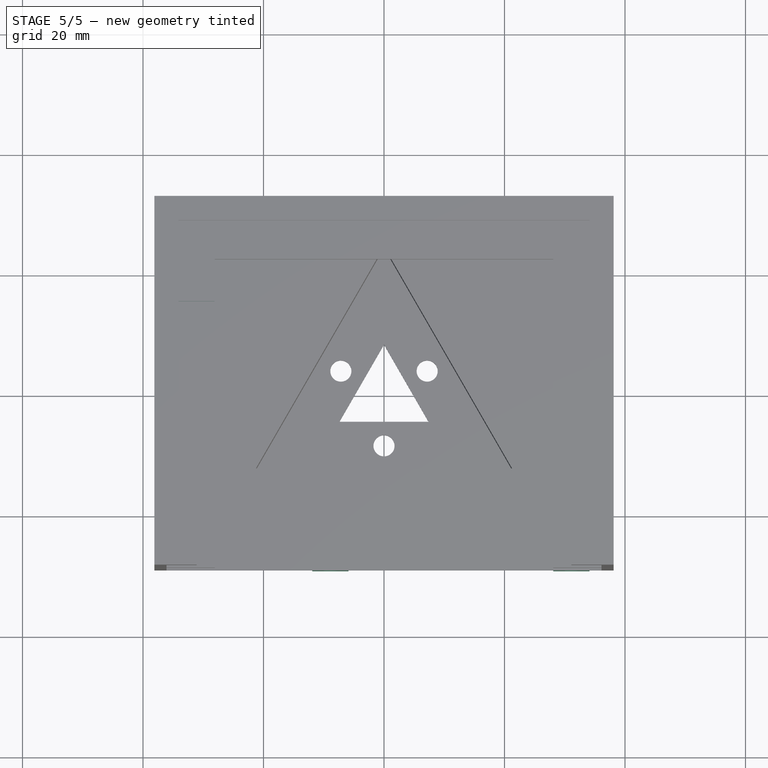
[diagram: stage 5 of 5 — top view after this stage's code; geometry added in this stage tinted green]
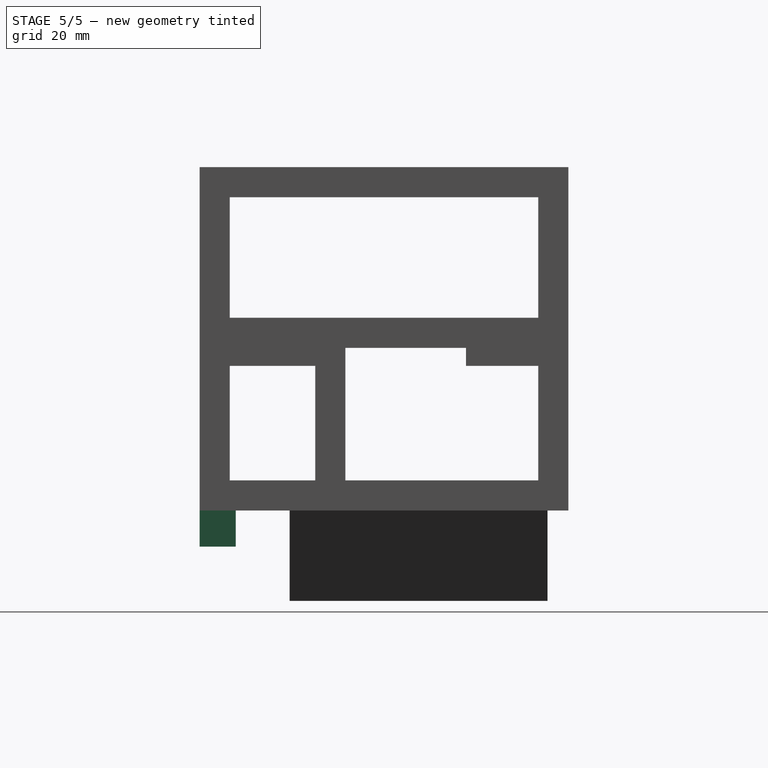
[diagram: stage 5 of 5 — right view after this stage's code; geometry added in this stage tinted green]
FEATURE [Sketcher::SketchObject] Sketch014
  ExternalGeometry = -> [Pad007]
  FullyConstrained = true
  MapMode = 5
  Placement = pos=(0,-29.2,0) rot=(1,0,0;1.5708rad)
  Support = -> [Pad007]
  sketch-geometry (10):
    g0: Circle CenterX=31.1 CenterY=12 CenterZ=0 NormalX=0 NormalY=0 NormalZ=1 AngleXU=0 Radius=1.25
    g1: Circle CenterX=-8.9 CenterY=12 CenterZ=0 NormalX=0 NormalY=0 NormalZ=1 AngleXU=0 Radius=1.25
    g2: LineSegment StartX=34.1 StartY=15 StartZ=0 EndX=28.1 EndY=15 EndZ=0
    g3: LineSegment StartX=28.1 StartY=15 StartZ=0 EndX=28.1 EndY=9 EndZ=0
    g4: LineSegment StartX=28.1 StartY=9 StartZ=0 EndX=34.1 EndY=9 EndZ=0
    g5: LineSegment StartX=34.1 StartY=9 StartZ=0 EndX=34.1 EndY=15 EndZ=0
    g6: LineSegment StartX=-5.9 StartY=15 StartZ=0 EndX=-11.9 EndY=15 EndZ=0
    g7: LineSegment StartX=-11.9 StartY=15 StartZ=0 EndX=-11.9 EndY=9 EndZ=0
    g8: LineSegment StartX=-11.9 StartY=9 StartZ=0 EndX=-5.9 EndY=9 EndZ=0
    g9: LineSegment StartX=-5.9 StartY=9 StartZ=0 EndX=-5.9 EndY=15 EndZ=0
  constraints (30):
    c: Diameter(g0) = 2.5
    c: Diameter(g1) = 2.5
    c: Distance(g0,g-4) = 7
    c: Distance(g0,g1) = 40
    c: Distance(g0,g-3) = 3
    c: Distance(g1,g-3) = 3
    c: Coincident(g2,g3)
    c: Coincident(g3,g4)
    c: Coincident(g4,g5)
    c: Coincident(g5,g2)
    c: Horizontal(g2)
    c: Horizontal(g4)
    c: Vertical(g3)
    c: Vertical(g5)
    c: PointOnObject(g2,g-3)
    c: Coincident(g6,g7)
    c: Coincident(g7,g8)
    c: Coincident(g8,g9)
    c: Coincident(g9,g6)
    c: Horizontal(g6)
    c: Horizontal(g8)
    c: Vertical(g7)
    c: Vertical(g9)
    c: PointOnObject(g6,g-3)
    c: Distance(g5) = 6
    c: Distance(g4) = 6
    c: Distance(g9) = 6
    c: Distance(g8) = 6
    c: Distance(g0,g5) = 3
    c: Distance(g1,g9) = 3
FEATURE [PartDesign::Pad] Pad008
  BaseFeature = -> Pad007
  Direction = (1,1,1)
  Length = 6
  Length2 = 100
  Profile = -> Sketch014
  Reversed = true
  Type = 0
FEATURE [Sketcher::SketchObject] Sketch015
  ExternalGeometry = -> [Pad008]
  FullyConstrained = true
  MapMode = 5
  Placement = pos=(0,0,44) rot=(0,0,1;0rad)
  Support = -> [Pad008]
  sketch-geometry (4):
    g0: LineSegment StartX=-28.1 StartY=15 StartZ=0 EndX=-36.1 EndY=15 EndZ=0
    g1: LineSegment StartX=-36.1 StartY=15 StartZ=0 EndX=-36.1 EndY=-5 EndZ=0
    g2: LineSegment StartX=-36.1 StartY=-5 StartZ=0 EndX=-28.1 EndY=-5 EndZ=0
    g3: LineSegment StartX=-28.1 StartY=-5 StartZ=0 EndX=-28.1 EndY=15 EndZ=0
  constraints (12):
    c: Coincident(g0,g1)
    c: Coincident(g1,g2)
    c: Coincident(g2,g3)
    c: Coincident(g3,g0)
    c: Horizontal(g0)
    c: Horizontal(g2)
    c: Vertical(g1)
    c: Vertical(g3)
    c: PointOnObject(g0,g-3)
    c: Distance(g0,g-4) = 15
    c: Distance(g1) = 20
    c: PointOnObject(g0,g-5)
FEATURE [PartDesign::Pocket] Pocket006
  BaseFeature = -> Pad008
  Length = 5
  Length2 = 100
  Profile = -> Sketch015
  Type = 0
FEATURE [Sketcher::SketchObject] Sketch016
  ExternalGeometry = -> [Pocket006]
  FullyConstrained = true
  MapMode = 5
  Placement = pos=(-36.1,0,0) rot=(0.57735,0.57735,0.57735;2.0944rad)
  Support = -> [Pocket006]
  sketch-geometry (4):
    g0: LineSegment StartX=-5 StartY=44 StartZ=0 EndX=15 EndY=44 EndZ=0
    g1: LineSegment StartX=15 StartY=44 StartZ=0 EndX=15 EndY=20 EndZ=0
    g2: LineSegment StartX=15 StartY=20 StartZ=0 EndX=-5 EndY=20 EndZ=0
    g3: LineSegment StartX=-5 StartY=20 StartZ=0 EndX=-5 EndY=44 EndZ=0
  constraints (11):
    c: Coincident(g0,g1)
    c: Coincident(g1,g2)
    c: Coincident(g2,g3)
    c: Coincident(g3,g0)
    c: Horizontal(g0)
    c: Horizontal(g2)
    c: Vertical(g1)
    c: Vertical(g3)
    c: Coincident(g0,g-4)
    c: PointOnObject(g1,g-5)
    c: PointOnObject(g-3,g1)
FEATURE [PartDesign::Pocket] Pocket007
  BaseFeature = -> Pocket006
  Length = 5
  Length2 = 100
  Profile = -> Sketch016
  Type = 0
FEATURE [PartDesign::Body] Body
  Group = -> [Sketch,Pad,Sketch001,Pad001,Sketch002,Pad002,Sketch003,Pad003,Sketch004,Pocket,Sketch005,Pocket001,Sketch006,Pocket002,Sketch007,Pad004,Sketch008,Pad005,Sketch009,Pocket003,Sketch010,Pocket004,Sketch011,Pocket005,Sketch012,Pad006,Sketch013,Pad007,Sketch014,Pad008,Sketch015,Pocket006,Sketch016,Pocket007]
  Origin = -> Origin
  Tip = -> Pocket007
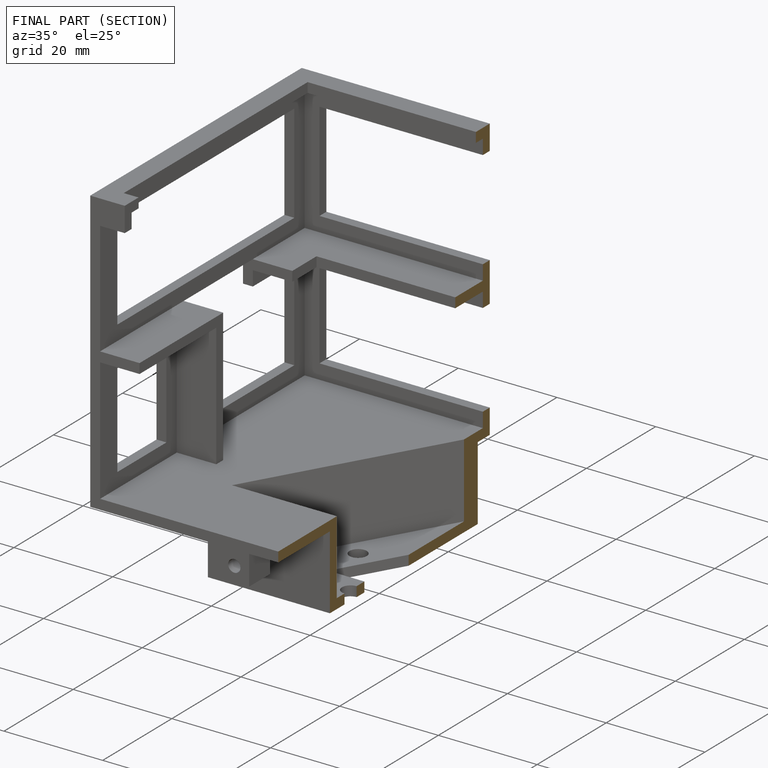
[diagram: finished part — half-section view (interior)]
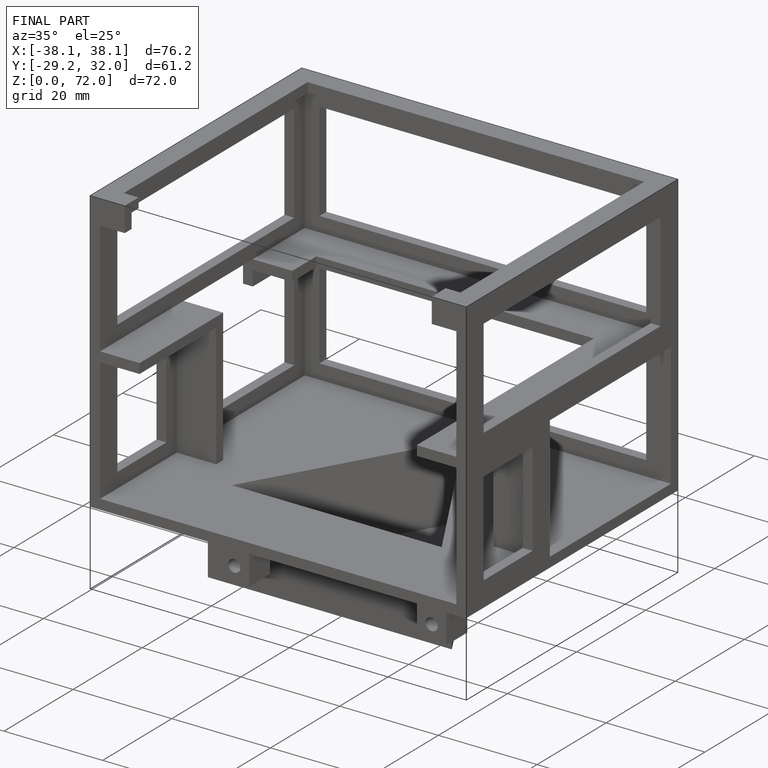
[diagram: finished part — iso view with bounding-box wireframe]
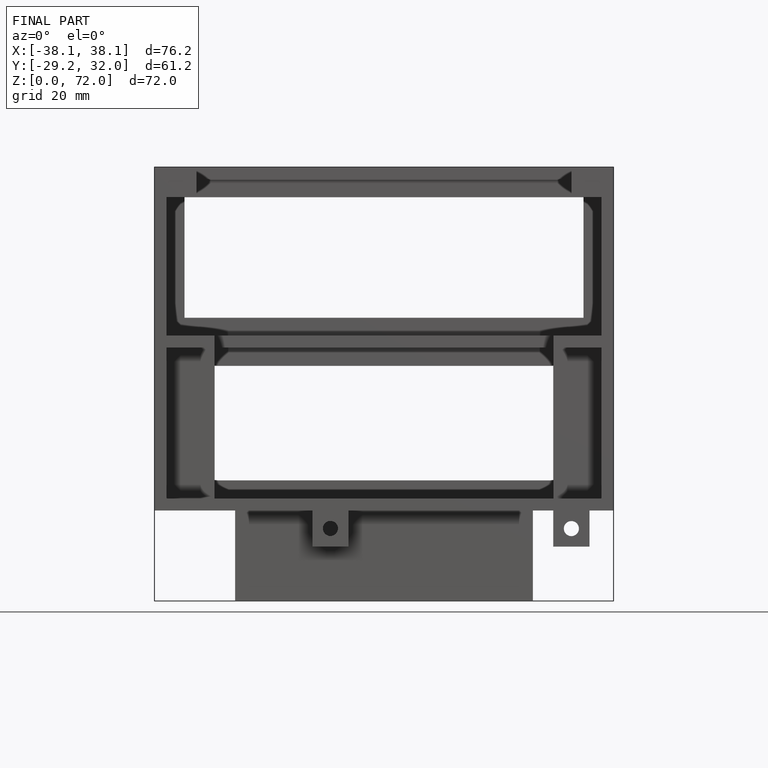
[diagram: finished part — front view with bounding-box wireframe]
